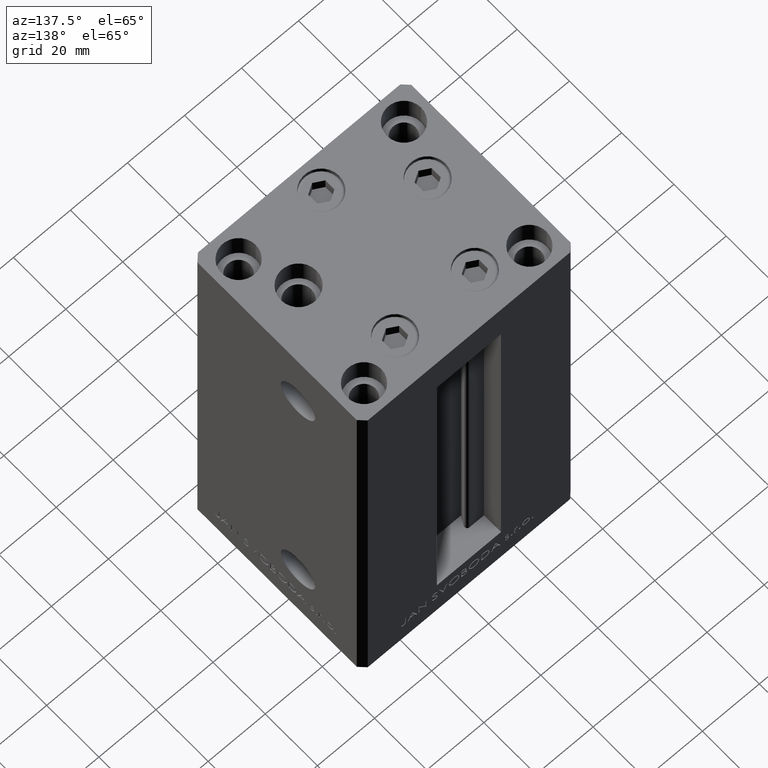
[diagram: clean part render]
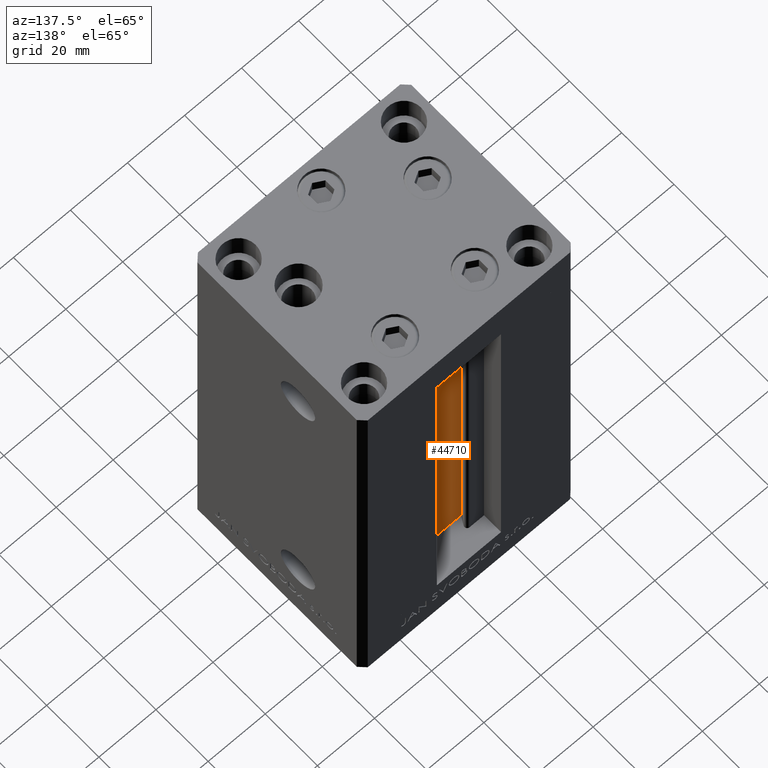
[diagram: same view with one face highlighted and labeled with its STEP entity id]
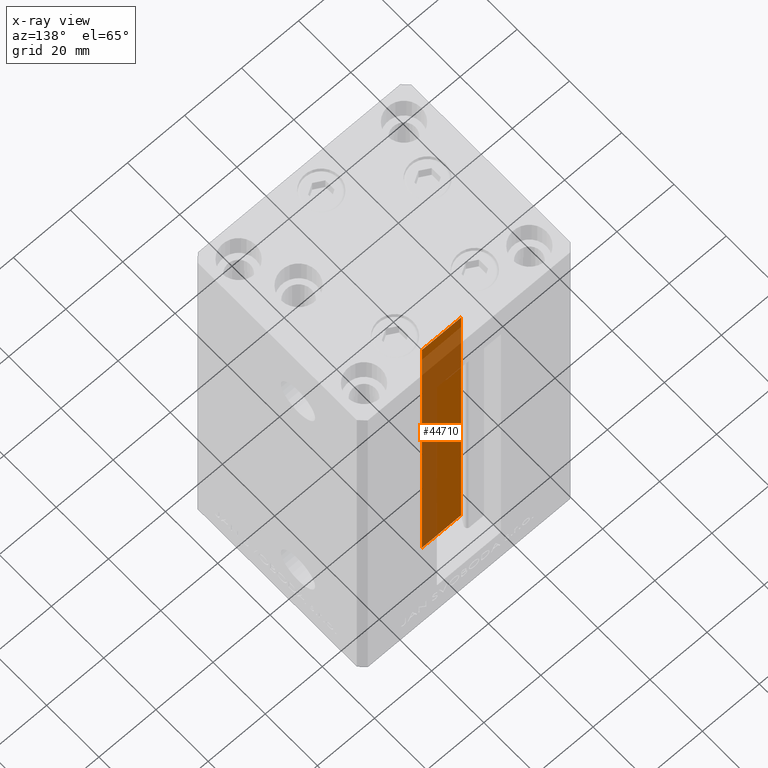
[diagram: x-ray of the same camera — body ghosted, the highlighted face saturated]
A machine part, auxiliary view. The second image highlights one B-rep face of the part: STEP entity #44710.
The next image is the same camera in x-ray: the body ghosted, the highlighted face saturated — about 49% of this face is hidden behind the body in this view.
In plain terms, the highlighted planar face has unit normal (0, -1, 0).
Its self-contained STEP definition (entity closure, byte-faithful):
#1950 = EDGE_CURVE ( 'NONE', #24051, #30325, #24987, .T. ) ;
#2465 = CARTESIAN_POINT ( 'NONE',  ( -6.876153656360466826, 21.99999999999986855, 0.000000000000000000 ) ) ;
#3359 = CARTESIAN_POINT ( 'NONE',  ( 6.876153656360466826, 21.99999999999986855, 0.000000000000000000 ) ) ;
#5264 = LINE ( 'NONE', #43623, #27669 ) ;
#6050 = CARTESIAN_POINT ( 'NONE',  ( 0.000000000000000000, 21.99999999999986855, 121.0000000000000000 ) ) ;
#7227 = VECTOR ( 'NONE', #17402, 1000.000000000000000 ) ;
#9394 = ORIENTED_EDGE ( 'NONE', *, *, #39268, .F. ) ;
#9443 = CARTESIAN_POINT ( 'NONE',  ( 6.876153656360466826, 21.99999999999986855, 0.000000000000000000 ) ) ;
#9532 = AXIS2_PLACEMENT_3D ( 'NONE', #3359, #14819, #44968 ) ;
#10100 = FACE_OUTER_BOUND ( 'NONE', #12644, .T. ) ;
#12644 = EDGE_LOOP ( 'NONE', ( #9394, #46039, #16055, #20749 ) ) ;
#14819 = DIRECTION ( 'NONE',  ( 0.000000000000000000, -1.000000000000000000, -0.000000000000000000 ) ) ;
#15083 = VERTEX_POINT ( 'NONE', #42076 ) ;
#15186 = DIRECTION ( 'NONE',  ( -0.000000000000000000, -0.000000000000000000, 1.000000000000000000 ) ) ;
#16055 = ORIENTED_EDGE ( 'NONE', *, *, #21303, .T. ) ;
#16117 = VECTOR ( 'NONE', #15186, 1000.000000000000000 ) ;
#17402 = DIRECTION ( 'NONE',  ( 1.000000000000000000, -0.000000000000000000, -0.000000000000000000 ) ) ;
#17598 = EDGE_CURVE ( 'NONE', #19463, #15083, #24638, .T. ) ;
#18920 = LINE ( 'NONE', #34111, #16117 ) ;
#19463 = VERTEX_POINT ( 'NONE', #2465 ) ;
#20749 = ORIENTED_EDGE ( 'NONE', *, *, #1950, .F. ) ;
#21303 = EDGE_CURVE ( 'NONE', #19463, #30325, #18920, .T. ) ;
#24051 = VERTEX_POINT ( 'NONE', #26651 ) ;
#24638 = LINE ( 'NONE', #9443, #7227 ) ;
#24987 = LINE ( 'NONE', #6050, #49004 ) ;
#26651 = CARTESIAN_POINT ( 'NONE',  ( 6.876153656360466826, 21.99999999999986855, 121.0000000000000000 ) ) ;
#27669 = VECTOR ( 'NONE', #27695, 1000.000000000000000 ) ;
#27695 = DIRECTION ( 'NONE',  ( -0.000000000000000000, -0.000000000000000000, 1.000000000000000000 ) ) ;
#30325 = VERTEX_POINT ( 'NONE', #47999 ) ;
#34111 = CARTESIAN_POINT ( 'NONE',  ( -6.876153656360466826, 21.99999999999986855, 0.000000000000000000 ) ) ;
#36943 = DIRECTION ( 'NONE',  ( -1.000000000000000000, 0.000000000000000000, 0.000000000000000000 ) ) ;
#39268 = EDGE_CURVE ( 'NONE', #15083, #24051, #5264, .T. ) ;
#42076 = CARTESIAN_POINT ( 'NONE',  ( 6.876153656360466826, 21.99999999999986855, 0.000000000000000000 ) ) ;
#43623 = CARTESIAN_POINT ( 'NONE',  ( 6.876153656360466826, 21.99999999999986855, 0.000000000000000000 ) ) ;
#44710 = ADVANCED_FACE ( 'NONE', ( #10100 ), #48954, .F. ) ;
#44968 = DIRECTION ( 'NONE',  ( 0.000000000000000000, 0.000000000000000000, -1.000000000000000000 ) ) ;
#46039 = ORIENTED_EDGE ( 'NONE', *, *, #17598, .F. ) ;
#47999 = CARTESIAN_POINT ( 'NONE',  ( -6.876153656360466826, 21.99999999999986855, 121.0000000000000000 ) ) ;
#48954 = PLANE ( 'NONE',  #9532 ) ;
#49004 = VECTOR ( 'NONE', #36943, 1000.000000000000000 ) ;